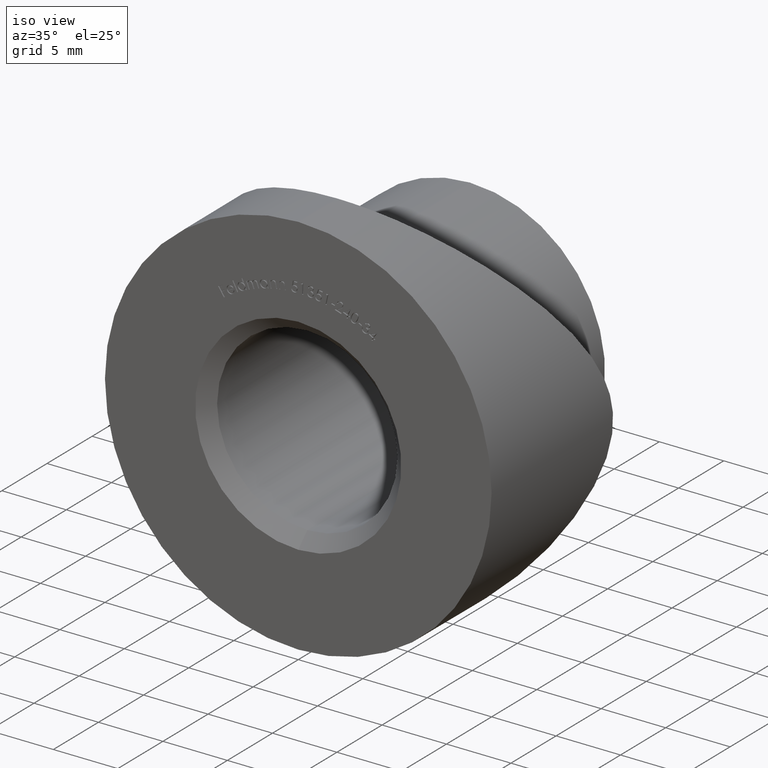
[diagram: clean part render]
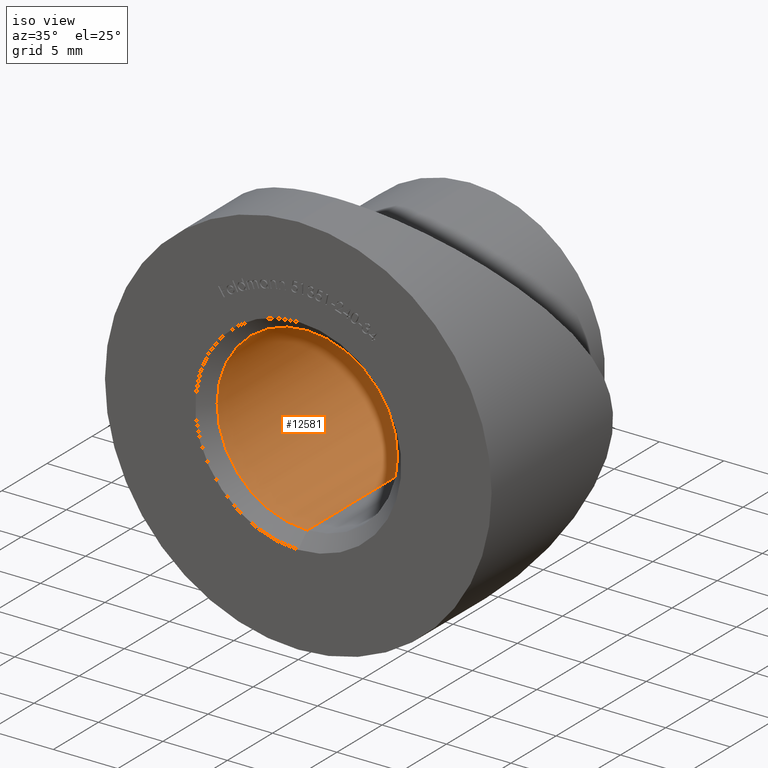
[diagram: same view with one face highlighted and labeled with its STEP entity id]
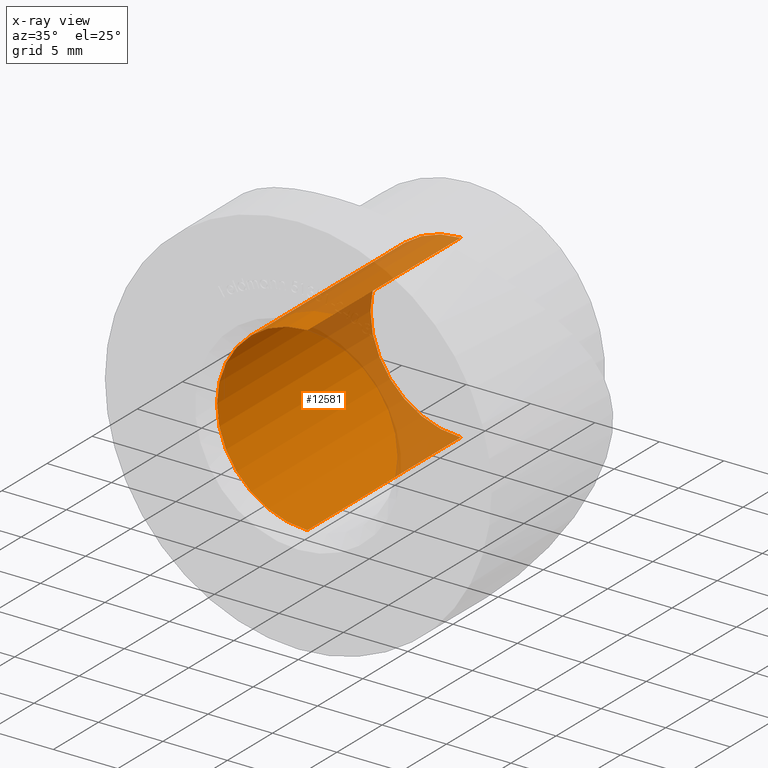
[diagram: x-ray of the same camera — body ghosted, the highlighted face saturated]
A machine part, iso view. The second image highlights one B-rep face of the part: STEP entity #12581.
The next image is the same camera in x-ray: the body ghosted, the highlighted face saturated — about 26% of this face is hidden behind the body in this view.
In plain terms, the highlighted cylindrical surface (partial cylindrical patch) has radius 7 mm, axis along (-0, 1, -0).
Its self-contained STEP definition (entity closure, byte-faithful):
#999 = DIRECTION ( 'NONE',  ( 0.0000000000000000000, 0.0000000000000000000, 1.000000000000000000 ) ) ;
#1114 = AXIS2_PLACEMENT_3D ( 'NONE', #3744, #4850, #5955 ) ;
#1378 = LINE ( 'NONE', #11071, #2400 ) ;
#1420 = CIRCLE ( 'NONE', #1114, 6.999999999999992900 ) ;
#1791 = CARTESIAN_POINT ( 'NONE',  ( 8.572527594031464300E-016, 0.9999999999999974500, -6.999999999999992900 ) ) ;
#2175 = VERTEX_POINT ( 'NONE', #4762 ) ;
#2216 = AXIS2_PLACEMENT_3D ( 'NONE', #6567, #4266, #999 ) ;
#2400 = VECTOR ( 'NONE', #14199, 1000.000000000000000 ) ;
#3202 = EDGE_CURVE ( 'NONE', #4965, #10634, #7259, .T. ) ;
#3744 = CARTESIAN_POINT ( 'NONE',  ( 0.0000000000000000000, 17.99999999999999600, 0.0000000000000000000 ) ) ;
#4044 = VERTEX_POINT ( 'NONE', #4054 ) ;
#4054 = CARTESIAN_POINT ( 'NONE',  ( 8.572527594031464300E-016, 17.99999999999999600, -6.999999999999992900 ) ) ;
#4266 = DIRECTION ( 'NONE',  ( -0.0000000000000000000, 1.000000000000000000, -0.0000000000000000000 ) ) ;
#4433 = EDGE_CURVE ( 'NONE', #4044, #2175, #1420, .T. ) ;
#4762 = CARTESIAN_POINT ( 'NONE',  ( 0.0000000000000000000, 17.99999999999999600, 6.999999999999992900 ) ) ;
#4843 = CYLINDRICAL_SURFACE ( 'NONE', #2216, 6.999999999999992900 ) ;
#4850 = DIRECTION ( 'NONE',  ( 0.0000000000000000000, 1.000000000000000000, 0.0000000000000000000 ) ) ;
#4965 = VERTEX_POINT ( 'NONE', #11639 ) ;
#5855 = VECTOR ( 'NONE', #11339, 1000.000000000000000 ) ;
#5955 = DIRECTION ( 'NONE',  ( 0.0000000000000000000, 0.0000000000000000000, -1.000000000000000000 ) ) ;
#5960 = CARTESIAN_POINT ( 'NONE',  ( 8.572527594031464300E-016, 19.00000000000000000, -6.999999999999992900 ) ) ;
#6180 = EDGE_CURVE ( 'NONE', #4965, #2175, #1378, .T. ) ;
#6567 = CARTESIAN_POINT ( 'NONE',  ( 0.0000000000000000000, 19.00000000000000000, 0.0000000000000000000 ) ) ;
#6880 = LINE ( 'NONE', #5960, #5855 ) ;
#7259 = CIRCLE ( 'NONE', #12295, 6.999999999999992900 ) ;
#8194 = ORIENTED_EDGE ( 'NONE', *, *, #3202, .T. ) ;
#8468 = CARTESIAN_POINT ( 'NONE',  ( 0.0000000000000000000, 0.9999999999999974500, 0.0000000000000000000 ) ) ;
#9056 = ORIENTED_EDGE ( 'NONE', *, *, #6180, .F. ) ;
#9490 = DIRECTION ( 'NONE',  ( 0.0000000000000000000, 0.0000000000000000000, 1.000000000000000000 ) ) ;
#9654 = ORIENTED_EDGE ( 'NONE', *, *, #4433, .T. ) ;
#9671 = ORIENTED_EDGE ( 'NONE', *, *, #14216, .T. ) ;
#10634 = VERTEX_POINT ( 'NONE', #1791 ) ;
#10698 = FACE_OUTER_BOUND ( 'NONE', #12574, .T. ) ;
#11071 = CARTESIAN_POINT ( 'NONE',  ( 0.0000000000000000000, 19.00000000000000000, 6.999999999999992900 ) ) ;
#11339 = DIRECTION ( 'NONE',  ( -0.0000000000000000000, 1.000000000000000000, -0.0000000000000000000 ) ) ;
#11639 = CARTESIAN_POINT ( 'NONE',  ( 0.0000000000000000000, 0.9999999999999974500, 6.999999999999992900 ) ) ;
#11699 = DIRECTION ( 'NONE',  ( -0.0000000000000000000, -1.000000000000000000, -0.0000000000000000000 ) ) ;
#12295 = AXIS2_PLACEMENT_3D ( 'NONE', #8468, #11699, #9490 ) ;
#12574 = EDGE_LOOP ( 'NONE', ( #8194, #9671, #9654, #9056 ) ) ;
#12581 = ADVANCED_FACE ( 'NONE', ( #10698 ), #4843, .F. ) ;
#14199 = DIRECTION ( 'NONE',  ( -0.0000000000000000000, 1.000000000000000000, -0.0000000000000000000 ) ) ;
#14216 = EDGE_CURVE ( 'NONE', #10634, #4044, #6880, .T. ) ;